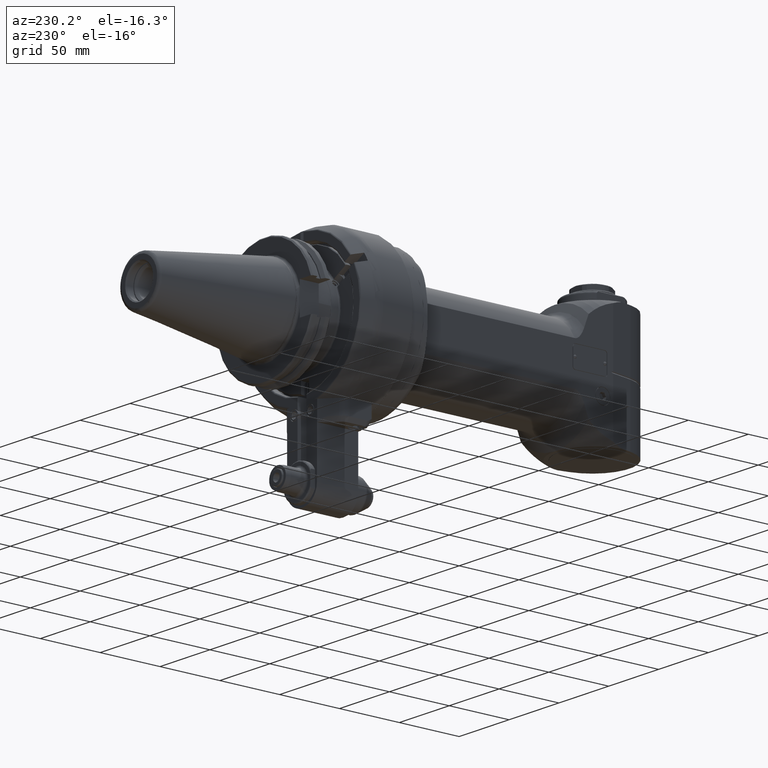
[diagram: clean part render]
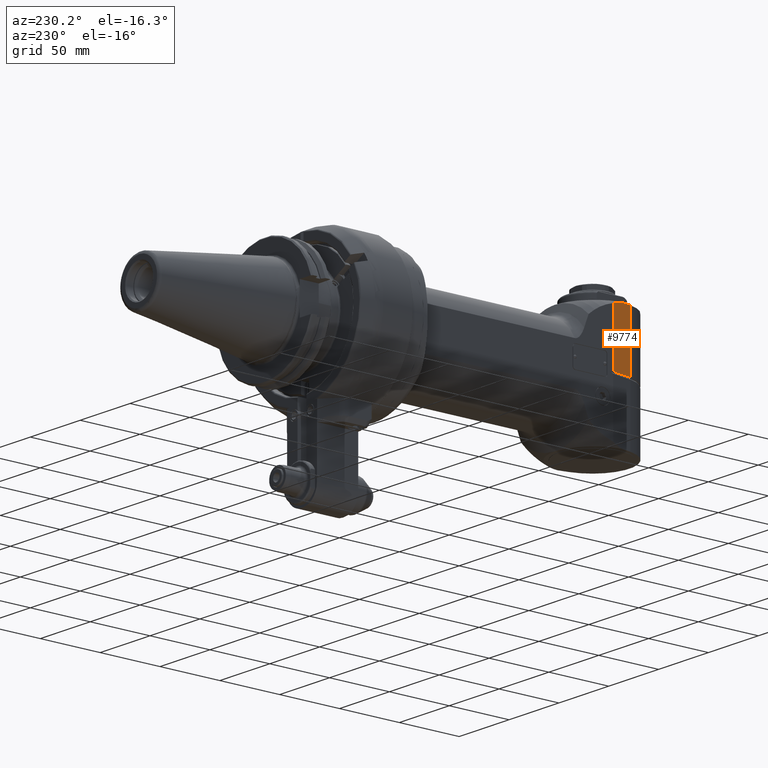
[diagram: same view with one face highlighted and labeled with its STEP entity id]
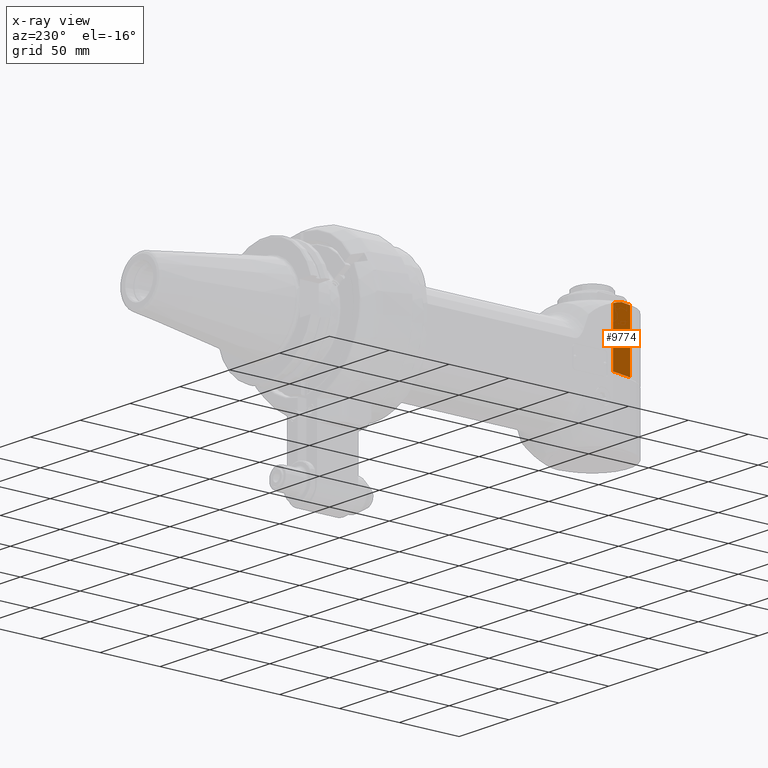
[diagram: x-ray of the same camera — body ghosted, the highlighted face saturated]
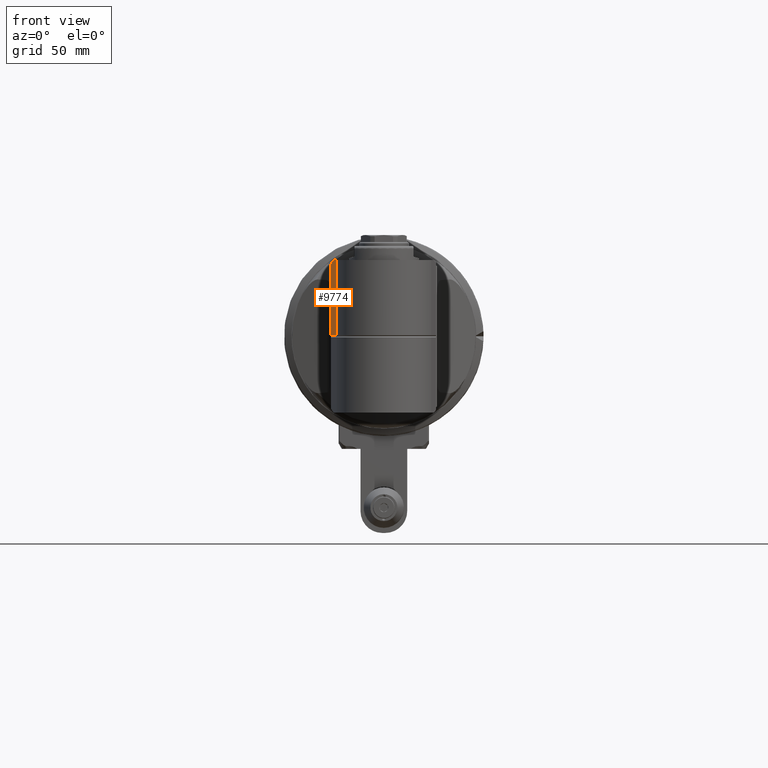
[diagram: same view with one face highlighted and labeled with its STEP entity id]
A machine part, auxiliary view. The second image highlights one B-rep face of the part: STEP entity #9774.
The next image is the same camera in x-ray: the body ghosted, the highlighted face saturated — about 0% of this face is hidden behind the body in this view.
A second angle (front view) of the same face is appended — the face is thin or edge-on in the first view.
In plain terms, the highlighted planar face has unit normal (0.9781, 0.2079, -0).
Its self-contained STEP definition (entity closure, byte-faithful):
#316=B_SPLINE_CURVE_WITH_KNOTS('',3,(#31086,#31087,#31088,#31089),
 .UNSPECIFIED.,.F.,.F.,(4,4),(0.,1.),.UNSPECIFIED.);
#317=B_SPLINE_CURVE_WITH_KNOTS('',3,(#31090,#31091,#31092,#31093),
 .UNSPECIFIED.,.F.,.F.,(4,4),(0.,1.),.UNSPECIFIED.);
#1520=FACE_OUTER_BOUND('',#2155,.T.);
#2155=EDGE_LOOP('',(#8218,#8219,#8220,#8221,#8222,#8223,#8224));
#2532=(
BOUNDED_CURVE()
B_SPLINE_CURVE(2,(#31064,#31065,#31066),.UNSPECIFIED.,.F.,.F.)
B_SPLINE_CURVE_WITH_KNOTS((3,3),(0.608380908919049,0.68297826313888),
 .UNSPECIFIED.)
CURVE()
GEOMETRIC_REPRESENTATION_ITEM()
RATIONAL_B_SPLINE_CURVE((1.05761844635276,1.0576184463528,1.05675216844758))
REPRESENTATION_ITEM('')
);
#3019=LINE('',#30885,#3632);
#3031=LINE('',#31080,#3644);
#3032=LINE('',#31084,#3645);
#3033=LINE('',#31094,#3646);
#3632=VECTOR('',#13015,10.);
#3644=VECTOR('',#13053,17.0000000000108);
#3645=VECTOR('',#13056,8.87507655635602);
#3646=VECTOR('',#13057,48.33431457505);
#4463=VERTEX_POINT('',#30879);
#4465=VERTEX_POINT('',#30884);
#4497=VERTEX_POINT('',#31062);
#4501=VERTEX_POINT('',#31078);
#4502=VERTEX_POINT('',#31082);
#4503=VERTEX_POINT('',#31083);
#4504=VERTEX_POINT('',#31085);
#5753=EDGE_CURVE('',#4465,#4463,#3019,.T.);
#5788=EDGE_CURVE('',#4497,#4463,#2532,.T.);
#5795=EDGE_CURVE('',#4501,#4497,#3031,.T.);
#5796=EDGE_CURVE('',#4502,#4503,#3032,.T.);
#5797=EDGE_CURVE('',#4504,#4502,#316,.T.);
#5798=EDGE_CURVE('',#4504,#4465,#317,.T.);
#5799=EDGE_CURVE('',#4503,#4501,#3033,.T.);
#8218=ORIENTED_EDGE('',*,*,#5796,.F.);
#8219=ORIENTED_EDGE('',*,*,#5797,.F.);
#8220=ORIENTED_EDGE('',*,*,#5798,.T.);
#8221=ORIENTED_EDGE('',*,*,#5753,.T.);
#8222=ORIENTED_EDGE('',*,*,#5788,.F.);
#8223=ORIENTED_EDGE('',*,*,#5795,.F.);
#8224=ORIENTED_EDGE('',*,*,#5799,.F.);
#9336=PLANE('',#10757);
#9774=ADVANCED_FACE('',(#1520),#9336,.F.);
#10757=AXIS2_PLACEMENT_3D('',#31081,#13054,#13055);
#13015=DIRECTION('',(0.,1.,0.));
#13053=DIRECTION('',(-0.978147598569952,-2.0815100773719E-8,-0.20791170099789));
#13054=DIRECTION('center_axis',(-0.207911690817799,0.,0.978147600733797));
#13055=DIRECTION('ref_axis',(-0.978147600733797,0.,-0.207911690817799));
#13056=DIRECTION('',(0.978147600733797,0.,0.207911690817799));
#13057=DIRECTION('',(1.352453888395E-13,1.,3.770700243188E-14));
#30879=CARTESIAN_POINT('',(267.207437955125,-0.646011301663342,-34.0000000010184));
#30884=CARTESIAN_POINT('',(267.2074379648,-46.31735122135,-34.));
#30885=CARTESIAN_POINT('',(267.207437964818,-57.38245956552,-34.));
#31062=CARTESIAN_POINT('',(267.879850218244,-0.665685616762259,-33.8570744389002));
#31064=CARTESIAN_POINT('Ctrl Pts',(267.879850202911,-0.665685424941188,
-33.8570743666461));
#31065=CARTESIAN_POINT('Ctrl Pts',(267.543919459965,-0.665685424941911,
-33.9284786503259));
#31066=CARTESIAN_POINT('Ctrl Pts',(267.207437955187,-0.646011304229411,
-34.0000000020471));
#31078=CARTESIAN_POINT('',(284.5083594154,-0.6656854249492,-30.32257562275));
#31080=CARTESIAN_POINT('',(284.5083594154,-0.6656854249494,-30.32257562275));
#31081=CARTESIAN_POINT('Origin',(304.1477751026,-70.8000024,-26.14808895106));
#31082=CARTESIAN_POINT('',(275.8272245754,-49.,-32.16780779572));
#31083=CARTESIAN_POINT('',(284.5083594153,-49.,-30.32257562275));
#31084=CARTESIAN_POINT('',(275.8272245754,-49.,-32.16780779572));
#31085=CARTESIAN_POINT('',(271.7592494227,-47.98986308028,-33.03248260713));
#31086=CARTESIAN_POINT('Ctrl Pts',(271.7592494227,-47.98986308028,-33.03248260713));
#31087=CARTESIAN_POINT('Ctrl Pts',(273.1139632923,-48.33195312284,-32.74452928498));
#31088=CARTESIAN_POINT('Ctrl Pts',(274.4699790139,-48.66856440992,-32.45629924562));
#31089=CARTESIAN_POINT('Ctrl Pts',(275.8272245754,-49.,-32.16780779572));
#31090=CARTESIAN_POINT('Ctrl Pts',(271.7592494227,-47.98986308028,-33.03248260713));
#31091=CARTESIAN_POINT('Ctrl Pts',(270.2386304167,-47.4418811097,-33.35570015467));
#31092=CARTESIAN_POINT('Ctrl Pts',(268.7212545366,-46.88467685953,-33.6782283545));
#31093=CARTESIAN_POINT('Ctrl Pts',(267.2074379648,-46.31735122135,-34.));
#31094=CARTESIAN_POINT('',(284.5083594153,-49.,-30.32257562275));